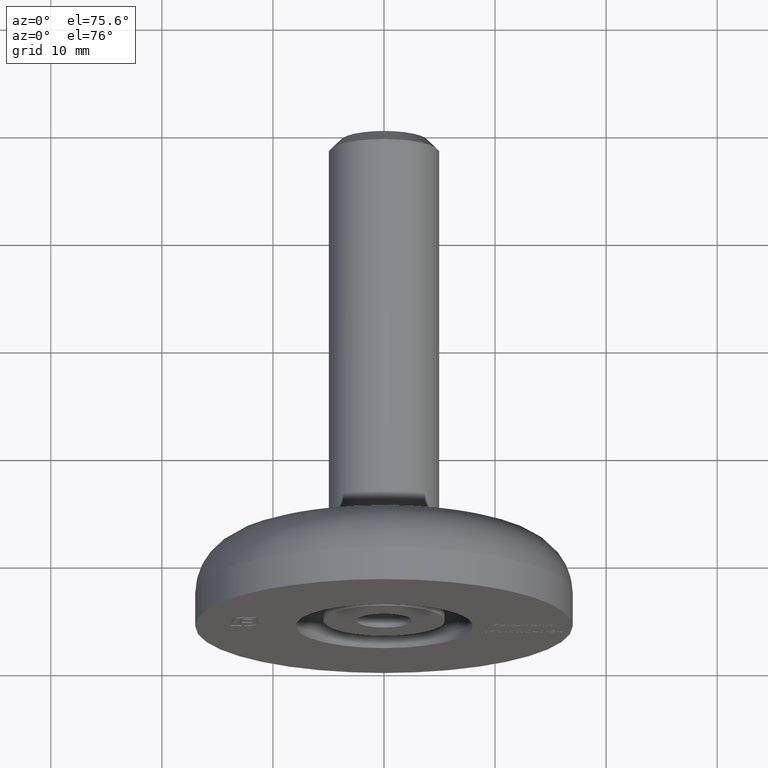
[diagram: clean part render]
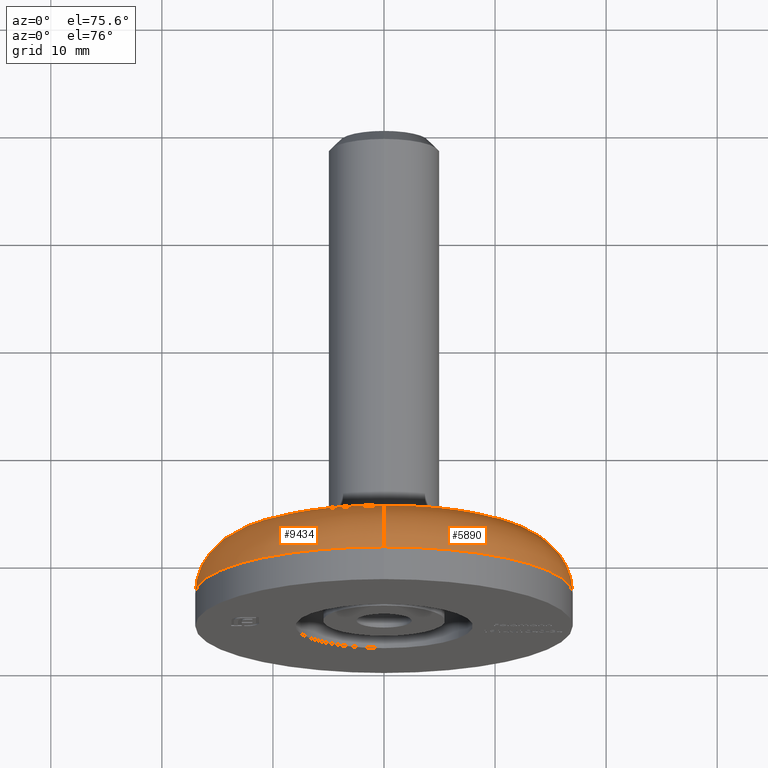
[diagram: same view with one multi-face feature highlighted, each face labeled with its STEP entity id]
A machine part, auxiliary view. The highlighted faces form ONE feature: a constant-radius fillet chain: 2 tangent blend faces with common blend radius 5 mm. The faces share edges in the B-rep.
Their STEP definitions:
[1] entity #9434 (Torus):
#794 = EDGE_CURVE ( 'NONE', #1796, #4575, #5638, .T. ) ;
#977 = EDGE_CURVE ( 'NONE', #10839, #13741, #8683, .T. ) ;
#1087 = CARTESIAN_POINT ( 'NONE',  ( 0.000000000000000000, 7.999999999999998224, 12.00000000000000000 ) ) ;
#1796 = VERTEX_POINT ( 'NONE', #8604 ) ;
#1896 = ORIENTED_EDGE ( 'NONE', *, *, #794, .F. ) ;
#2227 = DIRECTION ( 'NONE',  ( -0.000000000000000000, -1.000000000000000000, -0.000000000000000000 ) ) ;
#2673 = EDGE_LOOP ( 'NONE', ( #13096, #6862, #13803, #1896 ) ) ;
#3616 = FACE_OUTER_BOUND ( 'NONE', #2673, .T. ) ;
#4520 = DIRECTION ( 'NONE',  ( 0.000000000000000000, 0.000000000000000000, 1.000000000000000000 ) ) ;
#4575 = VERTEX_POINT ( 'NONE', #1087 ) ;
#5365 = DIRECTION ( 'NONE',  ( 1.000000000000000000, -0.000000000000000000, 1.224646799147353207E-16 ) ) ;
#5371 = EDGE_CURVE ( 'NONE', #13741, #1796, #5777, .T. ) ;
#5420 = CIRCLE ( 'NONE', #11815, 5.000000000000000888 ) ;
#5584 = DIRECTION ( 'NONE',  ( 0.000000000000000000, 0.000000000000000000, 1.000000000000000000 ) ) ;
#5638 = CIRCLE ( 'NONE', #11256, 12.00000000000000000 ) ;
#5777 = CIRCLE ( 'NONE', #8461, 5.000000000000000888 ) ;
#6762 = DIRECTION ( 'NONE',  ( 0.000000000000000000, 0.000000000000000000, 1.000000000000000000 ) ) ;
#6862 = ORIENTED_EDGE ( 'NONE', *, *, #977, .F. ) ;
#7925 = CARTESIAN_POINT ( 'NONE',  ( 0.000000000000000000, 2.999999999999998224, 0.000000000000000000 ) ) ;
#8152 = CARTESIAN_POINT ( 'NONE',  ( 2.081899558550500280E-15, 2.999999999999998224, 17.00000000000000000 ) ) ;
#8461 = AXIS2_PLACEMENT_3D ( 'NONE', #14584, #5365, #13310 ) ;
#8604 = CARTESIAN_POINT ( 'NONE',  ( 1.775737858763662015E-15, 7.999999999999998224, -12.00000000000000000 ) ) ;
#8670 = CARTESIAN_POINT ( 'NONE',  ( 0.000000000000000000, 2.999999999999998224, -17.00000000000000000 ) ) ;
#8683 = CIRCLE ( 'NONE', #13550, 17.00000000000000000 ) ;
#8924 = CARTESIAN_POINT ( 'NONE',  ( 0.000000000000000000, 2.999999999999998224, 12.00000000000000000 ) ) ;
#9434 = ADVANCED_FACE ( 'NONE', ( #3616 ), #13196, .T. ) ;
#10081 = DIRECTION ( 'NONE',  ( 0.000000000000000000, 1.000000000000000000, 0.000000000000000000 ) ) ;
#10291 = CARTESIAN_POINT ( 'NONE',  ( 0.000000000000000000, 2.999999999999998224, 0.000000000000000000 ) ) ;
#10839 = VERTEX_POINT ( 'NONE', #8152 ) ;
#11176 = DIRECTION ( 'NONE',  ( 0.000000000000000000, 0.000000000000000000, 1.000000000000000000 ) ) ;
#11227 = EDGE_CURVE ( 'NONE', #10839, #4575, #5420, .T. ) ;
#11256 = AXIS2_PLACEMENT_3D ( 'NONE', #12400, #11288, #5584 ) ;
#11288 = DIRECTION ( 'NONE',  ( 0.000000000000000000, 1.000000000000000000, 0.000000000000000000 ) ) ;
#11327 = DIRECTION ( 'NONE',  ( -1.000000000000000000, 0.000000000000000000, 0.000000000000000000 ) ) ;
#11815 = AXIS2_PLACEMENT_3D ( 'NONE', #8924, #11327, #11176 ) ;
#11902 = AXIS2_PLACEMENT_3D ( 'NONE', #7925, #10081, #6762 ) ;
#12400 = CARTESIAN_POINT ( 'NONE',  ( 0.000000000000000000, 7.999999999999998224, 0.000000000000000000 ) ) ;
#13096 = ORIENTED_EDGE ( 'NONE', *, *, #5371, .F. ) ;
#13196 = TOROIDAL_SURFACE ( 'NONE', #11902, 12.00000000000000000, 5.000000000000000000 ) ;
#13310 = DIRECTION ( 'NONE',  ( 1.224646799147352961E-16, 0.000000000000000000, -1.000000000000000000 ) ) ;
#13550 = AXIS2_PLACEMENT_3D ( 'NONE', #10291, #2227, #4520 ) ;
#13741 = VERTEX_POINT ( 'NONE', #8670 ) ;
#13803 = ORIENTED_EDGE ( 'NONE', *, *, #11227, .T. ) ;
#14584 = CARTESIAN_POINT ( 'NONE',  ( 1.469576158976823947E-15, 2.999999999999998224, -12.00000000000000000 ) ) ;
[2] entity #5890 (Torus):
#766 = CARTESIAN_POINT ( 'NONE',  ( 0.000000000000000000, 7.999999999999998224, 0.000000000000000000 ) ) ;
#1087 = CARTESIAN_POINT ( 'NONE',  ( 0.000000000000000000, 7.999999999999998224, 12.00000000000000000 ) ) ;
#1679 = DIRECTION ( 'NONE',  ( 0.000000000000000000, 0.000000000000000000, 1.000000000000000000 ) ) ;
#1796 = VERTEX_POINT ( 'NONE', #8604 ) ;
#2497 = CIRCLE ( 'NONE', #14913, 12.00000000000000000 ) ;
#3896 = DIRECTION ( 'NONE',  ( 0.000000000000000000, 0.000000000000000000, 1.000000000000000000 ) ) ;
#4195 = EDGE_CURVE ( 'NONE', #13741, #10839, #7962, .T. ) ;
#4490 = FACE_OUTER_BOUND ( 'NONE', #8258, .T. ) ;
#4575 = VERTEX_POINT ( 'NONE', #1087 ) ;
#5365 = DIRECTION ( 'NONE',  ( 1.000000000000000000, -0.000000000000000000, 1.224646799147353207E-16 ) ) ;
#5371 = EDGE_CURVE ( 'NONE', #13741, #1796, #5777, .T. ) ;
#5420 = CIRCLE ( 'NONE', #11815, 5.000000000000000888 ) ;
#5777 = CIRCLE ( 'NONE', #8461, 5.000000000000000888 ) ;
#5890 = ADVANCED_FACE ( 'NONE', ( #4490 ), #7950, .T. ) ;
#6160 = AXIS2_PLACEMENT_3D ( 'NONE', #9802, #10840, #3896 ) ;
#6319 = DIRECTION ( 'NONE',  ( 0.000000000000000000, 0.000000000000000000, 1.000000000000000000 ) ) ;
#6942 = ORIENTED_EDGE ( 'NONE', *, *, #5371, .T. ) ;
#7482 = EDGE_CURVE ( 'NONE', #4575, #1796, #2497, .T. ) ;
#7562 = ORIENTED_EDGE ( 'NONE', *, *, #4195, .F. ) ;
#7592 = ORIENTED_EDGE ( 'NONE', *, *, #7482, .F. ) ;
#7950 = TOROIDAL_SURFACE ( 'NONE', #10011, 12.00000000000000000, 5.000000000000000000 ) ;
#7962 = CIRCLE ( 'NONE', #6160, 17.00000000000000000 ) ;
#8152 = CARTESIAN_POINT ( 'NONE',  ( 2.081899558550500280E-15, 2.999999999999998224, 17.00000000000000000 ) ) ;
#8258 = EDGE_LOOP ( 'NONE', ( #7562, #6942, #7592, #8628 ) ) ;
#8461 = AXIS2_PLACEMENT_3D ( 'NONE', #14584, #5365, #13310 ) ;
#8604 = CARTESIAN_POINT ( 'NONE',  ( 1.775737858763662015E-15, 7.999999999999998224, -12.00000000000000000 ) ) ;
#8628 = ORIENTED_EDGE ( 'NONE', *, *, #11227, .F. ) ;
#8670 = CARTESIAN_POINT ( 'NONE',  ( 0.000000000000000000, 2.999999999999998224, -17.00000000000000000 ) ) ;
#8810 = DIRECTION ( 'NONE',  ( 0.000000000000000000, 1.000000000000000000, 0.000000000000000000 ) ) ;
#8924 = CARTESIAN_POINT ( 'NONE',  ( 0.000000000000000000, 2.999999999999998224, 12.00000000000000000 ) ) ;
#9802 = CARTESIAN_POINT ( 'NONE',  ( 0.000000000000000000, 2.999999999999998224, 0.000000000000000000 ) ) ;
#10011 = AXIS2_PLACEMENT_3D ( 'NONE', #10666, #12227, #1679 ) ;
#10666 = CARTESIAN_POINT ( 'NONE',  ( 0.000000000000000000, 2.999999999999998224, 0.000000000000000000 ) ) ;
#10839 = VERTEX_POINT ( 'NONE', #8152 ) ;
#10840 = DIRECTION ( 'NONE',  ( -0.000000000000000000, -1.000000000000000000, -0.000000000000000000 ) ) ;
#11176 = DIRECTION ( 'NONE',  ( 0.000000000000000000, 0.000000000000000000, 1.000000000000000000 ) ) ;
#11227 = EDGE_CURVE ( 'NONE', #10839, #4575, #5420, .T. ) ;
#11327 = DIRECTION ( 'NONE',  ( -1.000000000000000000, 0.000000000000000000, 0.000000000000000000 ) ) ;
#11815 = AXIS2_PLACEMENT_3D ( 'NONE', #8924, #11327, #11176 ) ;
#12227 = DIRECTION ( 'NONE',  ( 0.000000000000000000, 1.000000000000000000, 0.000000000000000000 ) ) ;
#13310 = DIRECTION ( 'NONE',  ( 1.224646799147352961E-16, 0.000000000000000000, -1.000000000000000000 ) ) ;
#13741 = VERTEX_POINT ( 'NONE', #8670 ) ;
#14584 = CARTESIAN_POINT ( 'NONE',  ( 1.469576158976823947E-15, 2.999999999999998224, -12.00000000000000000 ) ) ;
#14913 = AXIS2_PLACEMENT_3D ( 'NONE', #766, #8810, #6319 ) ;